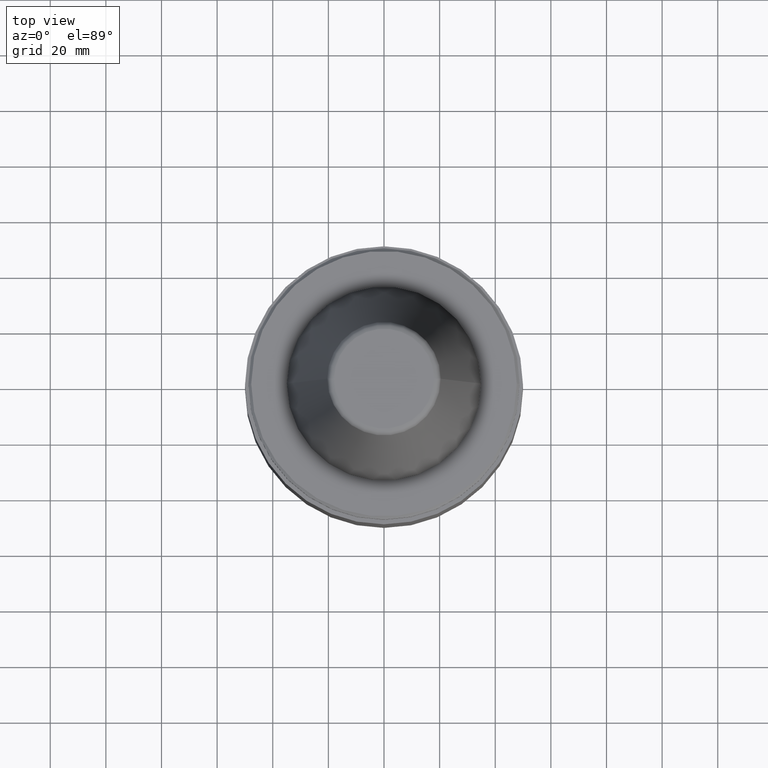
[diagram: clean part render]
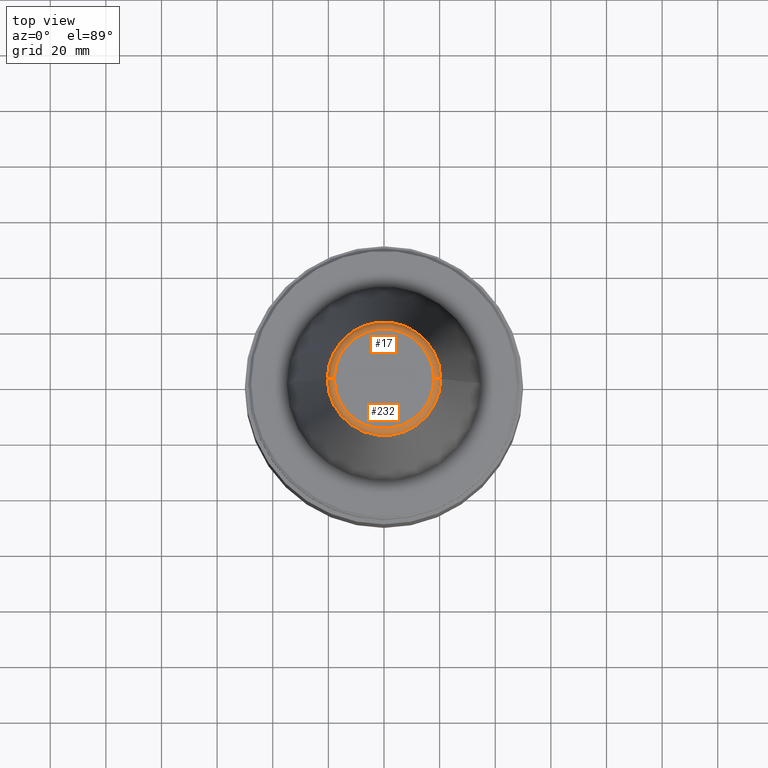
[diagram: same view with one multi-face feature highlighted, each face labeled with its STEP entity id]
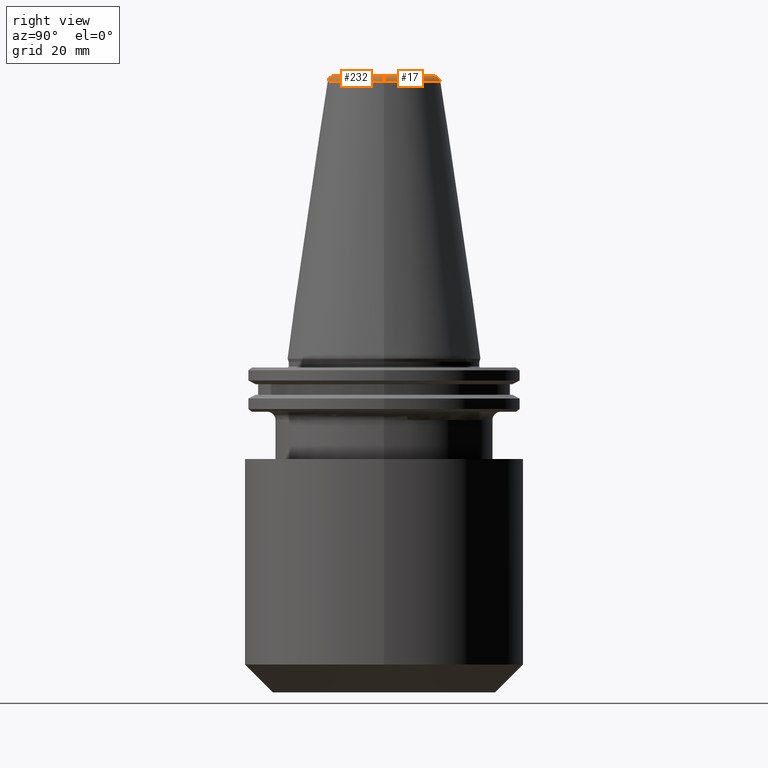
[diagram: same view with one multi-face feature highlighted, each face labeled with its STEP entity id]
A machine part, top view. The highlighted faces form ONE feature: a constant-radius fillet chain: 2 tangent blend faces with common blend radius 2.5 mm. The faces share edges in the B-rep.
A second angle (right view) of the same feature is appended — it is thin or edge-on in the first view.
Their STEP definitions:
[1] entity #17 (Torus):
#17 = ADVANCED_FACE ( 'NONE', ( #918 ), #1038, .T. ) ;
#27 = EDGE_LOOP ( 'NONE', ( #277, #480, #821, #372 ) ) ;
#29 = CIRCLE ( 'NONE', #493, 2.500000000000082200 ) ;
#75 = DIRECTION ( 'NONE',  ( 1.000000000000000000, 0.0000000000000000000, 0.0000000000000000000 ) ) ;
#77 = AXIS2_PLACEMENT_3D ( 'NONE', #790, #191, #536 ) ;
#82 = EDGE_CURVE ( 'NONE', #984, #717, #716, .T. ) ;
#99 = DIRECTION ( 'NONE',  ( 1.224646799147353200E-016, 1.000000000000000000, 0.0000000000000000000 ) ) ;
#176 = DIRECTION ( 'NONE',  ( 0.0000000000000000000, -1.000000000000000000, 0.0000000000000000000 ) ) ;
#191 = DIRECTION ( 'NONE',  ( -0.0000000000000000000, -0.0000000000000000000, 1.000000000000000000 ) ) ;
#248 = EDGE_CURVE ( 'NONE', #393, #660, #806, .T. ) ;
#277 = ORIENTED_EDGE ( 'NONE', *, *, #248, .T. ) ;
#310 = DIRECTION ( 'NONE',  ( -0.0000000000000000000, -0.0000000000000000000, 1.000000000000000000 ) ) ;
#337 = CARTESIAN_POINT ( 'NONE',  ( 17.92446055806129500, 0.0000000000000000000, 101.7500000000000900 ) ) ;
#372 = ORIENTED_EDGE ( 'NONE', *, *, #496, .F. ) ;
#382 = CARTESIAN_POINT ( 'NONE',  ( 20.39829252569114000, 3.387574655494023600E-015, 99.61077055857353500 ) ) ;
#393 = VERTEX_POINT ( 'NONE', #382 ) ;
#408 = AXIS2_PLACEMENT_3D ( 'NONE', #769, #507, #678 ) ;
#462 = CARTESIAN_POINT ( 'NONE',  ( -20.39829252569114000, 0.0000000000000000000, 99.61077055857353500 ) ) ;
#463 = AXIS2_PLACEMENT_3D ( 'NONE', #560, #176, #661 ) ;
#480 = ORIENTED_EDGE ( 'NONE', *, *, #896, .T. ) ;
#493 = AXIS2_PLACEMENT_3D ( 'NONE', #690, #99, #595 ) ;
#496 = EDGE_CURVE ( 'NONE', #393, #984, #615, .T. ) ;
#507 = DIRECTION ( 'NONE',  ( -0.0000000000000000000, -0.0000000000000000000, 1.000000000000000000 ) ) ;
#536 = DIRECTION ( 'NONE',  ( 1.000000000000000000, 0.0000000000000000000, 0.0000000000000000000 ) ) ;
#560 = CARTESIAN_POINT ( 'NONE',  ( 17.92446055806129500, 0.0000000000000000000, 99.25000000000000000 ) ) ;
#595 = DIRECTION ( 'NONE',  ( -1.000000000000000000, 1.224646799147353500E-016, 0.0000000000000000000 ) ) ;
#615 = CIRCLE ( 'NONE', #463, 2.500000000000085300 ) ;
#632 = AXIS2_PLACEMENT_3D ( 'NONE', #1077, #310, #75 ) ;
#660 = VERTEX_POINT ( 'NONE', #462 ) ;
#661 = DIRECTION ( 'NONE',  ( 0.0000000000000000000, 0.0000000000000000000, -1.000000000000000000 ) ) ;
#678 = DIRECTION ( 'NONE',  ( 1.000000000000000000, 0.0000000000000000000, 0.0000000000000000000 ) ) ;
#690 = CARTESIAN_POINT ( 'NONE',  ( -17.92446055806129500, 2.195113324887274600E-015, 99.25000000000000000 ) ) ;
#716 = CIRCLE ( 'NONE', #632, 17.92446055806129500 ) ;
#717 = VERTEX_POINT ( 'NONE', #953 ) ;
#769 = CARTESIAN_POINT ( 'NONE',  ( 0.0000000000000000000, 0.0000000000000000000, 99.25000000000000000 ) ) ;
#790 = CARTESIAN_POINT ( 'NONE',  ( 0.0000000000000000000, 0.0000000000000000000, 99.61077055857353500 ) ) ;
#806 = CIRCLE ( 'NONE', #77, 20.39829252569114000 ) ;
#821 = ORIENTED_EDGE ( 'NONE', *, *, #82, .F. ) ;
#896 = EDGE_CURVE ( 'NONE', #660, #717, #29, .T. ) ;
#918 = FACE_OUTER_BOUND ( 'NONE', #27, .T. ) ;
#953 = CARTESIAN_POINT ( 'NONE',  ( -17.92446055806129500, 2.346591844926584100E-015, 101.7500000000000900 ) ) ;
#984 = VERTEX_POINT ( 'NONE', #337 ) ;
#1038 = TOROIDAL_SURFACE ( 'NONE', #408, 17.92446055806129500, 2.500000000000083000 ) ;
#1077 = CARTESIAN_POINT ( 'NONE',  ( 0.0000000000000000000, 0.0000000000000000000, 101.7500000000000900 ) ) ;
[2] entity #232 (Torus):
#29 = CIRCLE ( 'NONE', #493, 2.500000000000082200 ) ;
#31 = TOROIDAL_SURFACE ( 'NONE', #56, 17.92446055806129500, 2.500000000000083000 ) ;
#56 = AXIS2_PLACEMENT_3D ( 'NONE', #546, #141, #312 ) ;
#74 = DIRECTION ( 'NONE',  ( -0.0000000000000000000, -0.0000000000000000000, 1.000000000000000000 ) ) ;
#99 = DIRECTION ( 'NONE',  ( 1.224646799147353200E-016, 1.000000000000000000, 0.0000000000000000000 ) ) ;
#112 = DIRECTION ( 'NONE',  ( -0.0000000000000000000, -0.0000000000000000000, 1.000000000000000000 ) ) ;
#123 = ORIENTED_EDGE ( 'NONE', *, *, #347, .T. ) ;
#141 = DIRECTION ( 'NONE',  ( -0.0000000000000000000, -0.0000000000000000000, 1.000000000000000000 ) ) ;
#155 = DIRECTION ( 'NONE',  ( 1.000000000000000000, 0.0000000000000000000, 0.0000000000000000000 ) ) ;
#176 = DIRECTION ( 'NONE',  ( 0.0000000000000000000, -1.000000000000000000, 0.0000000000000000000 ) ) ;
#232 = ADVANCED_FACE ( 'NONE', ( #624 ), #31, .T. ) ;
#240 = ORIENTED_EDGE ( 'NONE', *, *, #896, .F. ) ;
#312 = DIRECTION ( 'NONE',  ( 1.000000000000000000, 0.0000000000000000000, 0.0000000000000000000 ) ) ;
#337 = CARTESIAN_POINT ( 'NONE',  ( 17.92446055806129500, 0.0000000000000000000, 101.7500000000000900 ) ) ;
#347 = EDGE_CURVE ( 'NONE', #660, #393, #912, .T. ) ;
#382 = CARTESIAN_POINT ( 'NONE',  ( 20.39829252569114000, 3.387574655494023600E-015, 99.61077055857353500 ) ) ;
#393 = VERTEX_POINT ( 'NONE', #382 ) ;
#407 = ORIENTED_EDGE ( 'NONE', *, *, #811, .F. ) ;
#462 = CARTESIAN_POINT ( 'NONE',  ( -20.39829252569114000, 0.0000000000000000000, 99.61077055857353500 ) ) ;
#463 = AXIS2_PLACEMENT_3D ( 'NONE', #560, #176, #661 ) ;
#493 = AXIS2_PLACEMENT_3D ( 'NONE', #690, #99, #595 ) ;
#496 = EDGE_CURVE ( 'NONE', #393, #984, #615, .T. ) ;
#546 = CARTESIAN_POINT ( 'NONE',  ( 0.0000000000000000000, 0.0000000000000000000, 99.25000000000000000 ) ) ;
#560 = CARTESIAN_POINT ( 'NONE',  ( 17.92446055806129500, 0.0000000000000000000, 99.25000000000000000 ) ) ;
#595 = DIRECTION ( 'NONE',  ( -1.000000000000000000, 1.224646799147353500E-016, 0.0000000000000000000 ) ) ;
#605 = DIRECTION ( 'NONE',  ( 1.000000000000000000, 0.0000000000000000000, 0.0000000000000000000 ) ) ;
#615 = CIRCLE ( 'NONE', #463, 2.500000000000085300 ) ;
#624 = FACE_OUTER_BOUND ( 'NONE', #975, .T. ) ;
#660 = VERTEX_POINT ( 'NONE', #462 ) ;
#661 = DIRECTION ( 'NONE',  ( 0.0000000000000000000, 0.0000000000000000000, -1.000000000000000000 ) ) ;
#690 = CARTESIAN_POINT ( 'NONE',  ( -17.92446055806129500, 2.195113324887274600E-015, 99.25000000000000000 ) ) ;
#706 = CARTESIAN_POINT ( 'NONE',  ( 0.0000000000000000000, 0.0000000000000000000, 101.7500000000000900 ) ) ;
#717 = VERTEX_POINT ( 'NONE', #953 ) ;
#747 = CARTESIAN_POINT ( 'NONE',  ( 0.0000000000000000000, 0.0000000000000000000, 99.61077055857353500 ) ) ;
#811 = EDGE_CURVE ( 'NONE', #717, #984, #922, .T. ) ;
#888 = AXIS2_PLACEMENT_3D ( 'NONE', #747, #74, #155 ) ;
#896 = EDGE_CURVE ( 'NONE', #660, #717, #29, .T. ) ;
#912 = CIRCLE ( 'NONE', #888, 20.39829252569114000 ) ;
#922 = CIRCLE ( 'NONE', #1024, 17.92446055806129500 ) ;
#953 = CARTESIAN_POINT ( 'NONE',  ( -17.92446055806129500, 2.346591844926584100E-015, 101.7500000000000900 ) ) ;
#975 = EDGE_LOOP ( 'NONE', ( #240, #123, #1048, #407 ) ) ;
#984 = VERTEX_POINT ( 'NONE', #337 ) ;
#1024 = AXIS2_PLACEMENT_3D ( 'NONE', #706, #112, #605 ) ;
#1048 = ORIENTED_EDGE ( 'NONE', *, *, #496, .T. ) ;